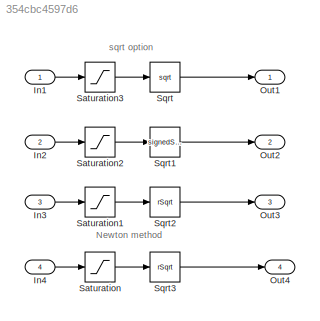
MODEL slx_354cbc4597d6
KIND model
CONFIG AbsTol = auto
CONFIG EnableMultiTasking = off
CONFIG FixedStep = 0.200000
CONFIG MaxStep = auto
CONFIG MinStep = auto
CONFIG RelTol = 1e-3
CONFIG SampleTimeConstraint = Unconstrained
CONFIG Solver = FixedStepDiscrete
CONFIG SolverName = FixedStepDiscrete
CONFIG StartTime = 0.0
CONFIG StopTime = 10.0
BLOCK [Inport] In1
  IconDisplay = Port number
  OutDataTypeStr = int32
  PortDimensions = 3
BLOCK [Inport] In2
  IconDisplay = Port number
  Port = 2
  PortDimensions = 3
BLOCK [Inport] In3
  IconDisplay = Port number
  Port = 3
  PortDimensions = 3
BLOCK [Inport] In4
  IconDisplay = Port number
  Port = 4
  PortDimensions = 3
BLOCK [Outport] Out1
  IconDisplay = Port number
BLOCK [Outport] Out2
  IconDisplay = Port number
  Port = 2
BLOCK [Outport] Out3
  IconDisplay = Port number
  Port = 3
BLOCK [Outport] Out4
  IconDisplay = Port number
  Port = 4
BLOCK [Saturate] Saturation
  InputPortMap = u0
  LowerLimit = 0.1
  Ports = [1, 1]
  UpperLimit = inf
BLOCK [Saturate] Saturation1
  InputPortMap = u0
  LowerLimit = 0.1
  Ports = [1, 1]
  UpperLimit = inf
BLOCK [Saturate] Saturation2
  InputPortMap = u0
  LowerLimit = 0.1
  Ports = [1, 1]
  UpperLimit = inf
BLOCK [Saturate] Saturation3
  InputPortMap = u0
  LowerLimit = 0.1
  Ports = [1, 1]
  UpperLimit = 300
BLOCK [Sqrt] Sqrt
BLOCK [Sqrt] Sqrt1
  Operator = signedSqrt
BLOCK [Sqrt] Sqrt2
  Operator = rSqrt
BLOCK [Sqrt] Sqrt3
  AlgorithmType = Newton-Raphson
  Operator = rSqrt
ANNOTATION (root): Newton method
ANNOTATION (root): sqrt option
LINE In1:1 -> Saturation3:1
LINE In2:1 -> Saturation2:1
LINE In3:1 -> Saturation1:1
LINE In4:1 -> Saturation:1
LINE Saturation1:1 -> Sqrt2:1
LINE Saturation2:1 -> Sqrt1:1
LINE Saturation3:1 -> Sqrt:1
LINE Saturation:1 -> Sqrt3:1
LINE Sqrt1:1 -> Out2:1
LINE Sqrt2:1 -> Out3:1
LINE Sqrt3:1 -> Out4:1
LINE Sqrt:1 -> Out1:1
